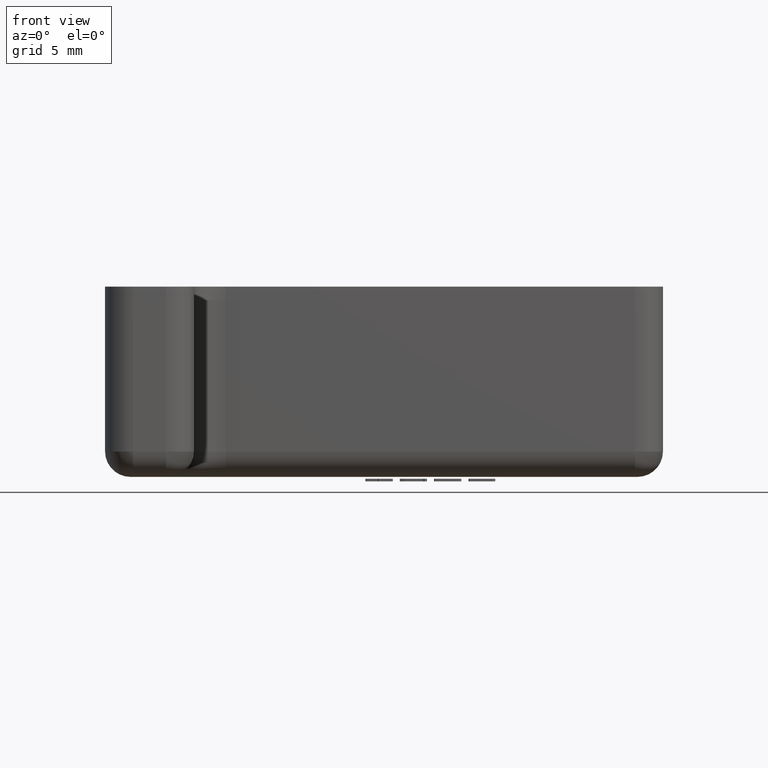
[diagram: clean part render]
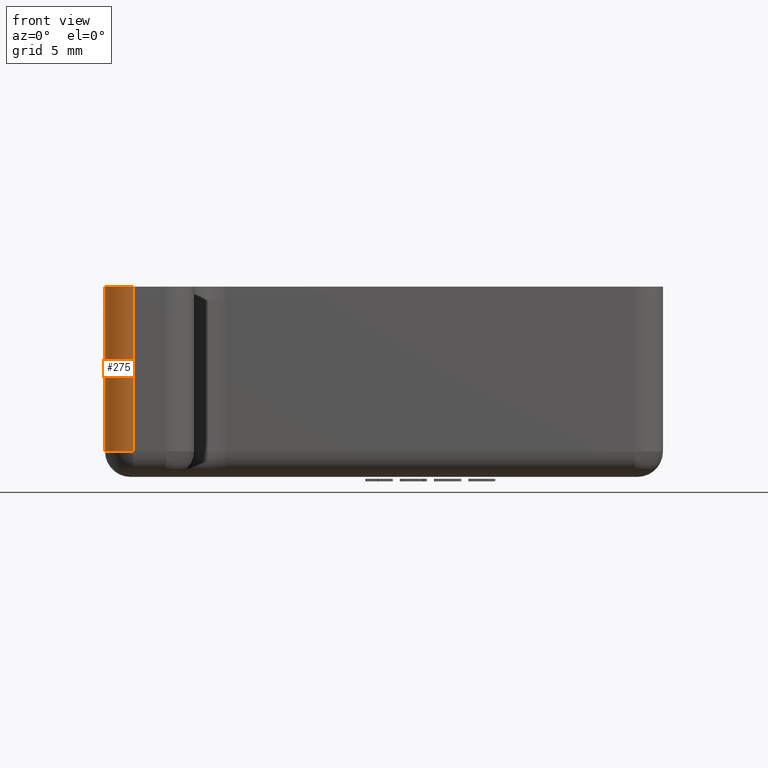
[diagram: same view with one face highlighted and labeled with its STEP entity id]
A machine part, front view. The second image highlights one B-rep face of the part: STEP entity #275.
In plain terms, the highlighted cylindrical surface (edge-blend (fillet) strip) has radius 2.2 mm, axis along (0, 0, -1).
Its self-contained STEP definition (entity closure, byte-faithful):
#275 = ADVANCED_FACE( '', ( #342 ), #343, .T. );
#342 = FACE_OUTER_BOUND( '', #458, .T. );
#343 = CYLINDRICAL_SURFACE( '', #459, 2.20000000000000 );
#458 = EDGE_LOOP( '', ( #739, #740, #741, #742 ) );
#459 = AXIS2_PLACEMENT_3D( '', #743, #744, #745 );
#739 = ORIENTED_EDGE( '', *, *, #1211, .F. );
#740 = ORIENTED_EDGE( '', *, *, #1212, .T. );
#741 = ORIENTED_EDGE( '', *, *, #1213, .T. );
#742 = ORIENTED_EDGE( '', *, *, #1168, .F. );
#743 = CARTESIAN_POINT( '', ( 0.200000000000008, -29.8000000000000, -15.0000000000000 ) );
#744 = DIRECTION( '', ( 0.000000000000000, 0.000000000000000, -1.00000000000000 ) );
#745 = DIRECTION( '', ( 0.000000000000000, 1.00000000000000, 0.000000000000000 ) );
#1168 = EDGE_CURVE( '', #1296, #1298, #1299, .T. );
#1211 = EDGE_CURVE( '', #1375, #1296, #1377, .T. );
#1212 = EDGE_CURVE( '', #1375, #1378, #1379, .T. );
#1213 = EDGE_CURVE( '', #1378, #1298, #1380, .T. );
#1296 = VERTEX_POINT( '', #1502 );
#1298 = VERTEX_POINT( '', #1505 );
#1299 = CIRCLE( '', #1506, 2.20000000000000 );
#1375 = VERTEX_POINT( '', #1606 );
#1377 = LINE( '', #1609, #1610 );
#1378 = VERTEX_POINT( '', #1611 );
#1379 = CIRCLE( '', #1612, 2.20000000000000 );
#1380 = LINE( '', #1613, #1614 );
#1502 = CARTESIAN_POINT( '', ( -2.00000000000000, -29.8000000000000, 0.000000000000000 ) );
#1505 = CARTESIAN_POINT( '', ( 0.200000000000008, -32.0000000000000, 0.000000000000000 ) );
#1506 = AXIS2_PLACEMENT_3D( '', #1990, #1991, #1992 );
#1606 = CARTESIAN_POINT( '', ( -2.00000000000000, -29.8000000000000, -13.0000000000000 ) );
#1609 = CARTESIAN_POINT( '', ( -2.00000000000000, -29.8000000000000, -15.0000000000000 ) );
#1610 = VECTOR( '', #2069, 1000.00000000000 );
#1611 = CARTESIAN_POINT( '', ( 0.200000000000008, -32.0000000000000, -13.0000000000000 ) );
#1612 = AXIS2_PLACEMENT_3D( '', #2070, #2071, #2072 );
#1613 = CARTESIAN_POINT( '', ( 0.200000000000008, -32.0000000000000, -15.0000000000000 ) );
#1614 = VECTOR( '', #2073, 1000.00000000000 );
#1990 = CARTESIAN_POINT( '', ( 0.200000000000008, -29.8000000000000, 0.000000000000000 ) );
#1991 = DIRECTION( '', ( 0.000000000000000, 0.000000000000000, 1.00000000000000 ) );
#1992 = DIRECTION( '', ( -1.00000000000000, 0.000000000000000, 0.000000000000000 ) );
#2069 = DIRECTION( '', ( 0.000000000000000, 0.000000000000000, 1.00000000000000 ) );
#2070 = CARTESIAN_POINT( '', ( 0.200000000000008, -29.8000000000000, -13.0000000000000 ) );
#2071 = DIRECTION( '', ( 0.000000000000000, 0.000000000000000, 1.00000000000000 ) );
#2072 = DIRECTION( '', ( 6.12303176911189E-017, -1.00000000000000, 0.000000000000000 ) );
#2073 = DIRECTION( '', ( 0.000000000000000, 0.000000000000000, 1.00000000000000 ) );